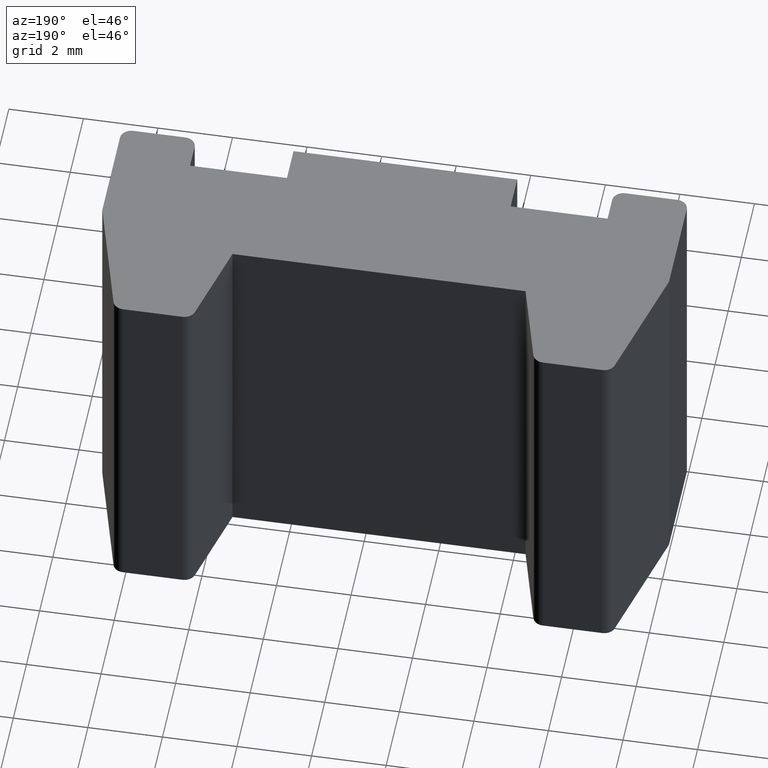
[diagram: clean part render]
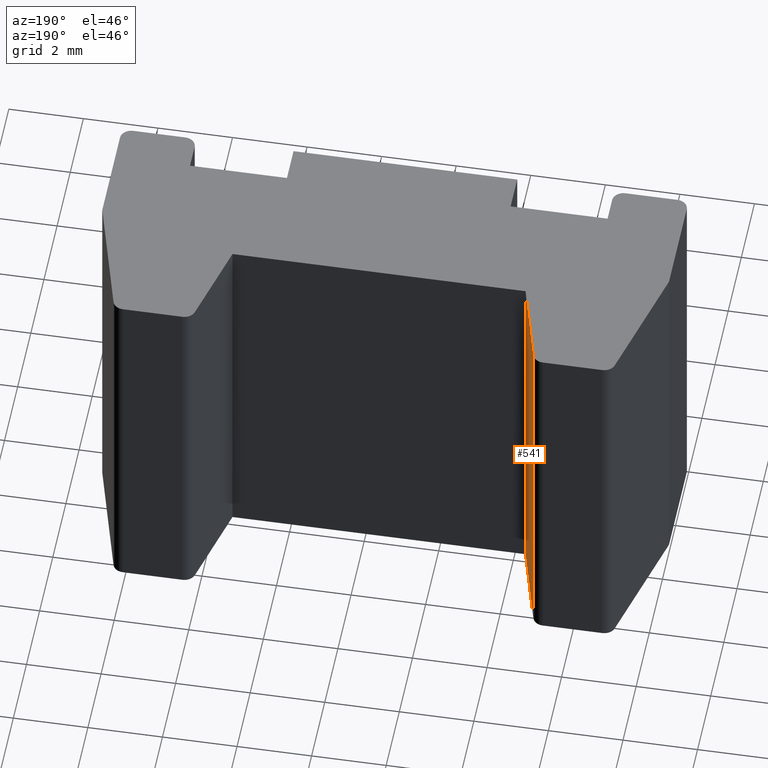
[diagram: same view with one face highlighted and labeled with its STEP entity id]
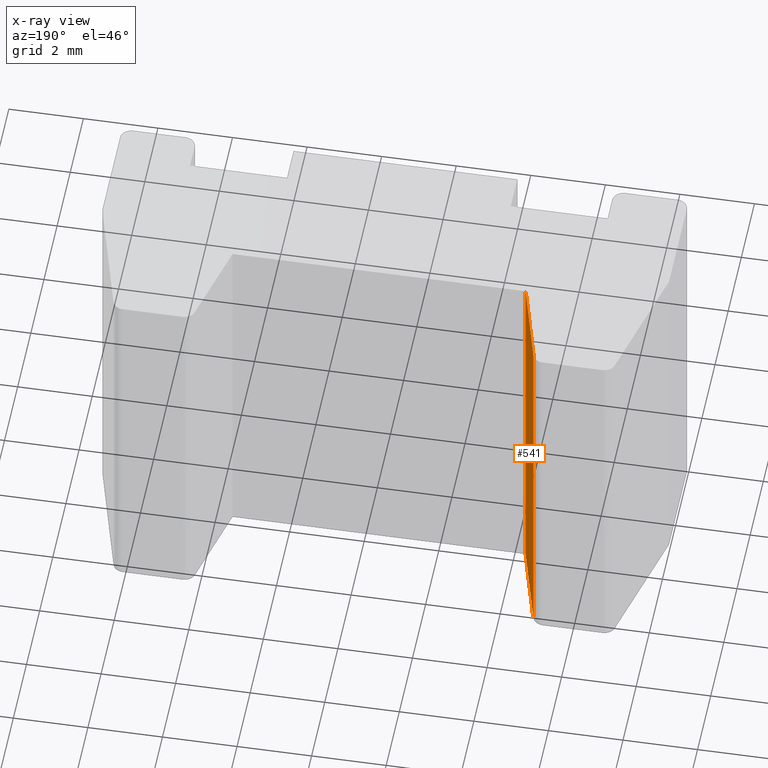
[diagram: x-ray of the same camera — body ghosted, the highlighted face saturated]
A machine part, auxiliary view. The second image highlights one B-rep face of the part: STEP entity #541.
The next image is the same camera in x-ray: the body ghosted, the highlighted face saturated — about 0% of this face is hidden behind the body in this view.
In plain terms, the highlighted planar face has unit normal (0.9659, 0.2588, 0).
Its self-contained STEP definition (entity closure, byte-faithful):
#23=PLANE('',#608);
#51=FACE_OUTER_BOUND('',#79,.T.);
#79=EDGE_LOOP('',(#447,#448,#449,#450));
#97=LINE('',#798,#159);
#126=LINE('',#876,#188);
#134=LINE('',#894,#196);
#135=LINE('',#895,#197);
#159=VECTOR('',#642,10.);
#188=VECTOR('',#711,10.);
#196=VECTOR('',#731,10.);
#197=VECTOR('',#732,10.);
#241=VERTEX_POINT('',#795);
#242=VERTEX_POINT('',#797);
#271=VERTEX_POINT('',#874);
#275=VERTEX_POINT('',#893);
#294=EDGE_CURVE('',#242,#241,#97,.T.);
#333=EDGE_CURVE('',#271,#241,#126,.T.);
#342=EDGE_CURVE('',#271,#275,#134,.T.);
#343=EDGE_CURVE('',#242,#275,#135,.T.);
#447=ORIENTED_EDGE('',*,*,#333,.F.);
#448=ORIENTED_EDGE('',*,*,#342,.T.);
#449=ORIENTED_EDGE('',*,*,#343,.F.);
#450=ORIENTED_EDGE('',*,*,#294,.T.);
#541=ADVANCED_FACE('',(#51),#23,.T.);
#608=AXIS2_PLACEMENT_3D('',#892,#729,#730);
#642=DIRECTION('',(-0.258819045102521,0.965925826289068,0.));
#711=DIRECTION('',(0.,0.,-1.));
#729=DIRECTION('center_axis',(0.965925826289068,0.258819045102521,0.));
#730=DIRECTION('ref_axis',(0.,0.,-1.));
#731=DIRECTION('',(0.258819045102521,-0.965925826289068,0.));
#732=DIRECTION('',(0.,0.,1.));
#795=CARTESIAN_POINT('',(3.05990182500196,6.27764571353076,0.));
#797=CARTESIAN_POINT('',(3.67019515458674,4.,0.));
#798=CARTESIAN_POINT('',(3.67019515458674,4.,0.));
#874=CARTESIAN_POINT('',(3.05990182500196,6.27764571353076,10.));
#876=CARTESIAN_POINT('',(3.05990182500196,6.27764571353076,0.));
#892=CARTESIAN_POINT('Origin',(3.00032217350893,6.5,0.));
#893=CARTESIAN_POINT('',(3.67019515458674,4.,10.));
#894=CARTESIAN_POINT('',(3.67019515458674,4.,10.));
#895=CARTESIAN_POINT('',(3.67019515458674,4.,0.));